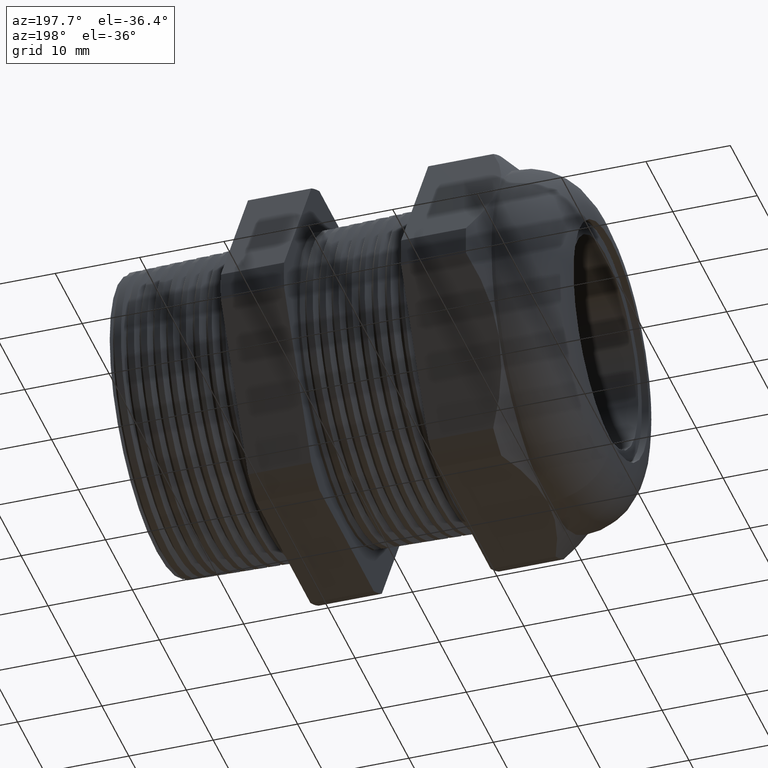
[diagram: clean part render]
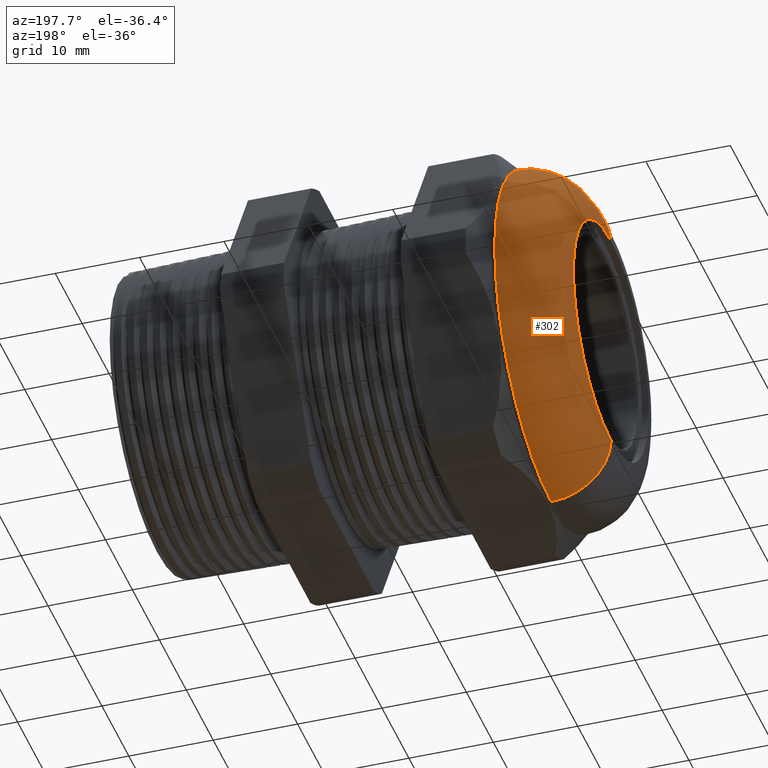
[diagram: same view with one face highlighted and labeled with its STEP entity id]
A machine part, auxiliary view. The second image highlights one B-rep face of the part: STEP entity #302.
In plain terms, the highlighted toroidal blend (fillet) surface has major radius 13.843 mm and minor (blend) radius 7.112 mm.
Its self-contained STEP definition (entity closure, byte-faithful):
#292 = EDGE_LOOP ( 'NONE', ( #303, #333, #336, #339 ) ) ;
#302 = ADVANCED_FACE ( 'NONE', ( #1405 ), #1402, .T. ) ;
#303 = ORIENTED_EDGE ( 'NONE', *, *, #304, .F. ) ;
#304 = EDGE_CURVE ( 'NONE', #305, #332, #1398, .T. ) ;
#305 = VERTEX_POINT ( 'NONE', #1393 ) ;
#332 = VERTEX_POINT ( 'NONE', #1467 ) ;
#333 = ORIENTED_EDGE ( 'NONE', *, *, #334, .T. ) ;
#334 = EDGE_CURVE ( 'NONE', #305, #335, #1466, .T. ) ;
#335 = VERTEX_POINT ( 'NONE', #1461 ) ;
#336 = ORIENTED_EDGE ( 'NONE', *, *, #337, .T. ) ;
#337 = EDGE_CURVE ( 'NONE', #335, #338, #1460, .T. ) ;
#338 = VERTEX_POINT ( 'NONE', #1519 ) ;
#339 = ORIENTED_EDGE ( 'NONE', *, *, #340, .F. ) ;
#340 = EDGE_CURVE ( 'NONE', #332, #338, #1518, .T. ) ;
#1393 = CARTESIAN_POINT ( 'NONE',  ( -1.560069763155174800, 0.0000000000000000000, -0.8250000000000000700 ) ) ;
#1394 = DIRECTION ( 'NONE',  ( 0.0000000000000000000, 0.0000000000000000000, 1.000000000000000000 ) ) ;
#1395 = DIRECTION ( 'NONE',  ( 1.000000000000000000, 0.0000000000000000000, 0.0000000000000000000 ) ) ;
#1396 = CARTESIAN_POINT ( 'NONE',  ( -1.560069763155174800, 0.0000000000000000000, 0.0000000000000000000 ) ) ;
#1397 = AXIS2_PLACEMENT_3D ( 'NONE', #1396, #1395, #1394 ) ;
#1398 = CIRCLE ( 'NONE', #1397, 0.8250000000000000700 ) ;
#1399 = DIRECTION ( 'NONE',  ( 0.0000000000000000000, 0.0000000000000000000, 1.000000000000000000 ) ) ;
#1400 = DIRECTION ( 'NONE',  ( -1.000000000000000000, 0.0000000000000000000, 0.0000000000000000000 ) ) ;
#1401 = AXIS2_PLACEMENT_3D ( 'NONE', #1404, #1400, #1399 ) ;
#1402 = TOROIDAL_SURFACE ( 'NONE', #1401, 0.5450000000000000400, 0.2800000000000000300 ) ;
#1404 = CARTESIAN_POINT ( 'NONE',  ( -1.560069763155174800, 0.0000000000000000000, 0.0000000000000000000 ) ) ;
#1405 = FACE_OUTER_BOUND ( 'NONE', #292, .T. ) ;
#1457 = DIRECTION ( 'NONE',  ( 1.000000000000000000, 0.0000000000000000000, 0.0000000000000000000 ) ) ;
#1458 = CARTESIAN_POINT ( 'NONE',  ( -1.840000000000000100, 0.0000000000000000000, 0.0000000000000000000 ) ) ;
#1459 = AXIS2_PLACEMENT_3D ( 'NONE', #1458, #1457, #1520 ) ;
#1460 = CIRCLE ( 'NONE', #1459, 0.5512500000000000200 ) ;
#1461 = CARTESIAN_POINT ( 'NONE',  ( -1.840000000000000100, 0.0000000000000000000, -0.5512500000000000200 ) ) ;
#1462 = DIRECTION ( 'NONE',  ( 0.0000000000000000000, -1.224646799147353000E-016, 1.000000000000000000 ) ) ;
#1463 = DIRECTION ( 'NONE',  ( 0.0000000000000000000, 1.000000000000000000, 1.224646799147353200E-016 ) ) ;
#1464 = CARTESIAN_POINT ( 'NONE',  ( -1.560069763155174800, 6.674325055353075000E-017, -0.5450000000000000400 ) ) ;
#1465 = AXIS2_PLACEMENT_3D ( 'NONE', #1464, #1463, #1462 ) ;
#1466 = CIRCLE ( 'NONE', #1465, 0.2800000000000000300 ) ;
#1467 = CARTESIAN_POINT ( 'NONE',  ( -1.560069763155174800, 1.010333609296566500E-016, 0.8250000000000000700 ) ) ;
#1514 = DIRECTION ( 'NONE',  ( 0.0000000000000000000, 0.0000000000000000000, -1.000000000000000000 ) ) ;
#1515 = DIRECTION ( 'NONE',  ( 0.0000000000000000000, -1.000000000000000000, 0.0000000000000000000 ) ) ;
#1516 = CARTESIAN_POINT ( 'NONE',  ( -1.560069763155174800, 0.0000000000000000000, 0.5450000000000000400 ) ) ;
#1517 = AXIS2_PLACEMENT_3D ( 'NONE', #1516, #1515, #1514 ) ;
#1518 = CIRCLE ( 'NONE', #1517, 0.2800000000000000300 ) ;
#1519 = CARTESIAN_POINT ( 'NONE',  ( -1.840000000000000100, 6.750865480299784700E-017, 0.5512500000000000200 ) ) ;
#1520 = DIRECTION ( 'NONE',  ( 0.0000000000000000000, 0.0000000000000000000, -1.000000000000000000 ) ) ;